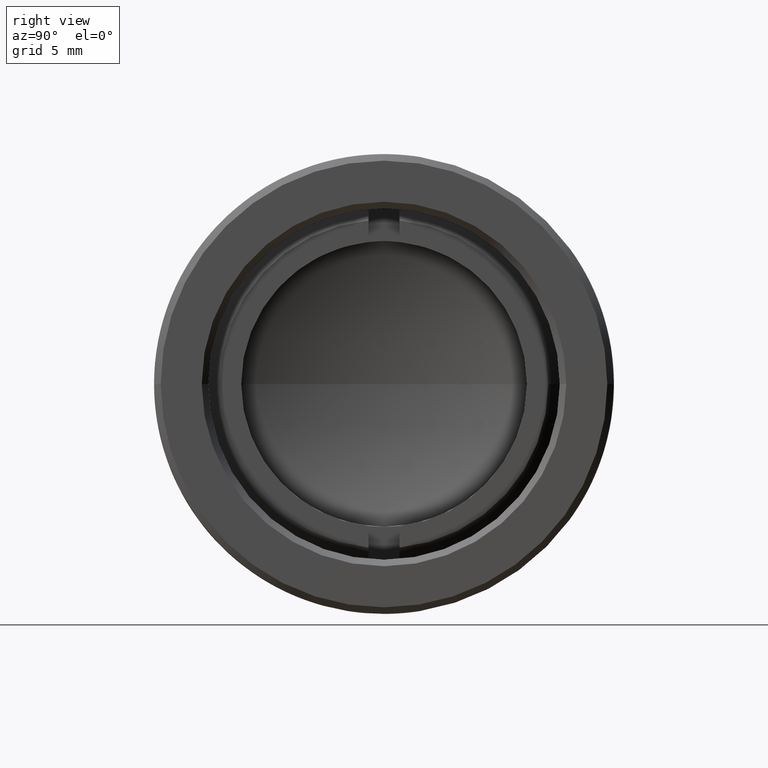
[diagram: clean part render]
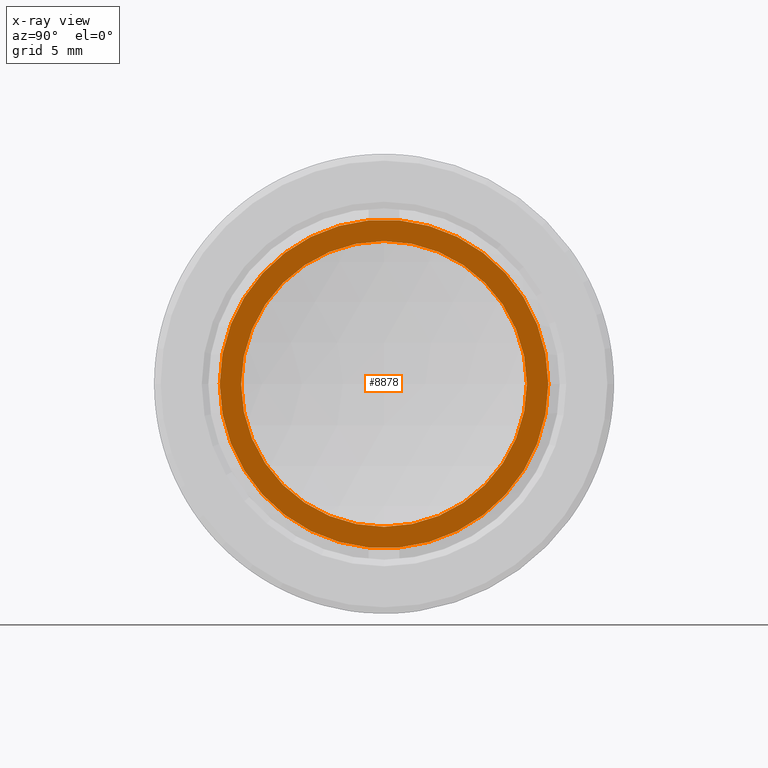
[diagram: x-ray — body ghosted, one internal face saturated and labeled with its STEP entity id]
A machine part, right view, then the same camera in x-ray: the body is ghosted and one INTERNAL B-rep face — a face not visible from any outside direction — is saturated and labeled: STEP entity #8878.
In plain terms, the highlighted planar face has unit normal (1, 0, 0).
Its self-contained STEP definition (entity closure, byte-faithful):
#174 = EDGE_CURVE ( 'NONE', #7385, #5363, #2003, .T. ) ;
#204 = EDGE_CURVE ( 'NONE', #5363, #7385, #8115, .T. ) ;
#289 = EDGE_LOOP ( 'NONE', ( #3559, #1081 ) ) ;
#572 = CARTESIAN_POINT ( 'NONE',  ( 0.02445637855010204100, 5.200280855856932500E-017, -1.852430301776354500E-030 ) ) ;
#1081 = ORIENTED_EDGE ( 'NONE', *, *, #174, .T. ) ;
#1219 = DIRECTION ( 'NONE',  ( -1.000000000000000000, -3.361775527071162900E-016, -1.004737734495143400E-030 ) ) ;
#1347 = DIRECTION ( 'NONE',  ( 3.336308612952045900E-016, -1.000000000000000000, -5.551115123125782100E-017 ) ) ;
#1517 = DIRECTION ( 'NONE',  ( 3.361775527071162900E-016, -1.000000000000000000, -5.551115123125781500E-017 ) ) ;
#1689 = CIRCLE ( 'NONE', #1863, 0.2175000000000000000 ) ;
#1863 = AXIS2_PLACEMENT_3D ( 'NONE', #8117, #3509, #8914 ) ;
#2003 = CIRCLE ( 'NONE', #6031, 0.2501794919243116000 ) ;
#2676 = CARTESIAN_POINT ( 'NONE',  ( 0.02445637855010211400, -0.2174999999999999400, -3.870974327425532600E-017 ) ) ;
#3509 = DIRECTION ( 'NONE',  ( 1.000000000000000000, 3.361775527071162900E-016, 1.004737734495143400E-030 ) ) ;
#3559 = ORIENTED_EDGE ( 'NONE', *, *, #204, .T. ) ;
#3781 = PLANE ( 'NONE',  #8512 ) ;
#3972 = AXIS2_PLACEMENT_3D ( 'NONE', #8921, #4298, #9704 ) ;
#4160 = CARTESIAN_POINT ( 'NONE',  ( 0.02445637855010196800, 0.2175000000000000800, 1.207367539279675600E-017 ) ) ;
#4298 = DIRECTION ( 'NONE',  ( -1.000000000000000000, -3.361775527071162900E-016, -1.004737734495143400E-030 ) ) ;
#4587 = ORIENTED_EDGE ( 'NONE', *, *, #5141, .T. ) ;
#4700 = VERTEX_POINT ( 'NONE', #2676 ) ;
#5141 = EDGE_CURVE ( 'NONE', #4700, #8645, #7931, .T. ) ;
#5218 = CARTESIAN_POINT ( 'NONE',  ( 0.02445637855010195400, 0.2501794919243116600, -1.733023435570308200E-017 ) ) ;
#5363 = VERTEX_POINT ( 'NONE', #8671 ) ;
#5529 = ORIENTED_EDGE ( 'NONE', *, *, #6977, .T. ) ;
#5798 = CARTESIAN_POINT ( 'NONE',  ( 0.02445637855010204100, 5.200280855856932500E-017, -1.852430301776354500E-030 ) ) ;
#5933 = DIRECTION ( 'NONE',  ( 1.000000000000000000, 3.361775527071162900E-016, 1.004737734495143400E-030 ) ) ;
#6031 = AXIS2_PLACEMENT_3D ( 'NONE', #5798, #1219, #6592 ) ;
#6112 = DIRECTION ( 'NONE',  ( 1.000000000000000000, 3.361775527071162900E-016, 1.004737734495143400E-030 ) ) ;
#6345 = FACE_OUTER_BOUND ( 'NONE', #289, .T. ) ;
#6545 = AXIS2_PLACEMENT_3D ( 'NONE', #572, #5933, #1347 ) ;
#6592 = DIRECTION ( 'NONE',  ( 3.412360027808987500E-016, -1.000000000000000000, -5.551115123125781500E-017 ) ) ;
#6829 = FACE_BOUND ( 'NONE', #8410, .T. ) ;
#6977 = EDGE_CURVE ( 'NONE', #8645, #4700, #1689, .T. ) ;
#7385 = VERTEX_POINT ( 'NONE', #5218 ) ;
#7931 = CIRCLE ( 'NONE', #6545, 0.2175000000000000000 ) ;
#8115 = CIRCLE ( 'NONE', #3972, 0.2501794919243116000 ) ;
#8117 = CARTESIAN_POINT ( 'NONE',  ( 0.02445637855010204100, 5.200280855856932500E-017, -1.852430301776354500E-030 ) ) ;
#8395 = CARTESIAN_POINT ( 'NONE',  ( 0.02445637855010204100, 5.200280855856932500E-017, -1.852430301776354500E-030 ) ) ;
#8410 = EDGE_LOOP ( 'NONE', ( #5529, #4587 ) ) ;
#8512 = AXIS2_PLACEMENT_3D ( 'NONE', #8395, #6112, #1517 ) ;
#8645 = VERTEX_POINT ( 'NONE', #4160 ) ;
#8671 = CARTESIAN_POINT ( 'NONE',  ( 0.02445637855010212800, -0.2501794919243115500, -1.388775161117155700E-017 ) ) ;
#8878 = ADVANCED_FACE ( 'NONE', ( #6345, #6829 ), #3781, .F. ) ;
#8914 = DIRECTION ( 'NONE',  ( 3.336308612952045900E-016, -1.000000000000000000, -5.551115123125782100E-017 ) ) ;
#8921 = CARTESIAN_POINT ( 'NONE',  ( 0.02445637855010204100, 5.200280855856932500E-017, -1.852430301776354500E-030 ) ) ;
#9704 = DIRECTION ( 'NONE',  ( 3.412360027808987500E-016, -1.000000000000000000, -5.551115123125781500E-017 ) ) ;